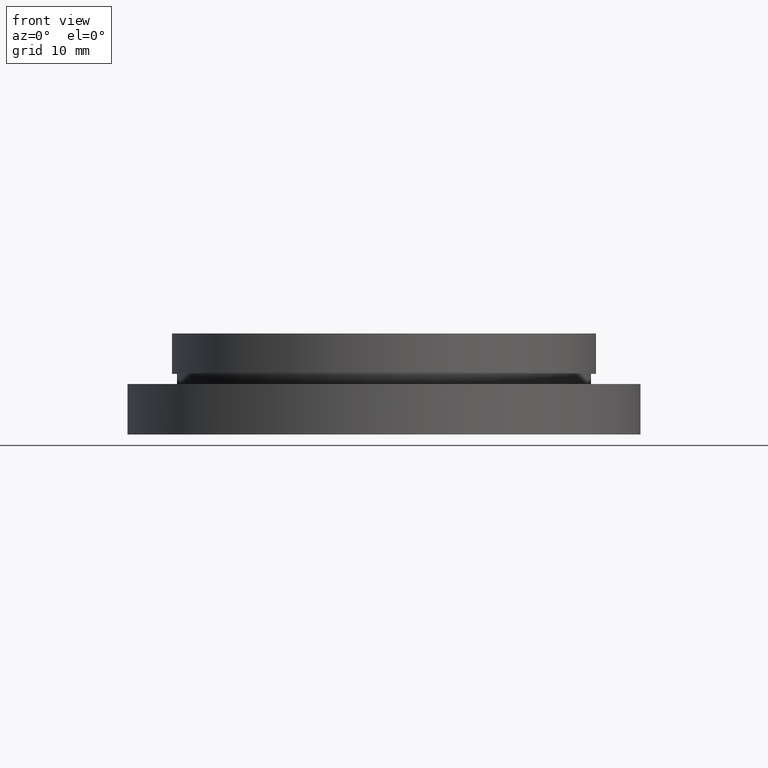
[diagram: clean part render]
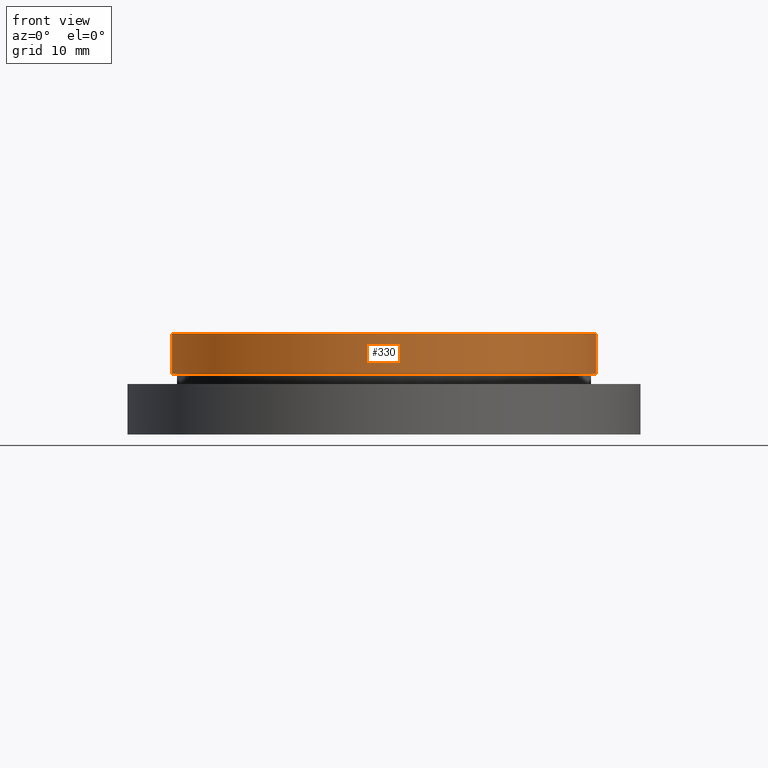
[diagram: same view with one face highlighted and labeled with its STEP entity id]
A machine part, front view. The second image highlights one B-rep face of the part: STEP entity #330.
In plain terms, the highlighted cylindrical surface (partial cylindrical patch) has radius 21 mm, axis along (-0, -0, -1).
Its self-contained STEP definition (entity closure, byte-faithful):
#10 = EDGE_CURVE ( 'NONE', #219, #157, #46, .T. ) ;
#25 = CARTESIAN_POINT ( 'NONE',  ( -21.00000000000000400, 0.0000000000000000000, -19.14057971014493000 ) ) ;
#28 = VECTOR ( 'NONE', #179, 1000.000000000000000 ) ;
#33 = CARTESIAN_POINT ( 'NONE',  ( 21.00000000000000400, 2.571758278209442100E-015, -4.000000000000000000 ) ) ;
#36 = ORIENTED_EDGE ( 'NONE', *, *, #276, .T. ) ;
#45 = DIRECTION ( 'NONE',  ( -1.000000000000000000, 0.0000000000000000000, 0.0000000000000000000 ) ) ;
#46 = CIRCLE ( 'NONE', #204, 21.00000000000000400 ) ;
#70 = CYLINDRICAL_SURFACE ( 'NONE', #365, 21.00000000000000400 ) ;
#84 = VERTEX_POINT ( 'NONE', #33 ) ;
#93 = CIRCLE ( 'NONE', #295, 21.00000000000000400 ) ;
#102 = EDGE_LOOP ( 'NONE', ( #230, #223, #36, #131 ) ) ;
#125 = VERTEX_POINT ( 'NONE', #354 ) ;
#131 = ORIENTED_EDGE ( 'NONE', *, *, #335, .F. ) ;
#140 = CARTESIAN_POINT ( 'NONE',  ( 0.0000000000000000000, 0.0000000000000000000, 0.0000000000000000000 ) ) ;
#142 = VECTOR ( 'NONE', #229, 1000.000000000000000 ) ;
#143 = DIRECTION ( 'NONE',  ( -1.000000000000000000, 0.0000000000000000000, 0.0000000000000000000 ) ) ;
#157 = VERTEX_POINT ( 'NONE', #325 ) ;
#176 = DIRECTION ( 'NONE',  ( -0.0000000000000000000, -0.0000000000000000000, -1.000000000000000000 ) ) ;
#179 = DIRECTION ( 'NONE',  ( -0.0000000000000000000, -0.0000000000000000000, -1.000000000000000000 ) ) ;
#184 = CARTESIAN_POINT ( 'NONE',  ( 0.0000000000000000000, 0.0000000000000000000, -4.000000000000000000 ) ) ;
#186 = DIRECTION ( 'NONE',  ( -1.000000000000000000, 0.0000000000000000000, 0.0000000000000000000 ) ) ;
#192 = EDGE_CURVE ( 'NONE', #219, #84, #273, .T. ) ;
#204 = AXIS2_PLACEMENT_3D ( 'NONE', #140, #176, #45 ) ;
#219 = VERTEX_POINT ( 'NONE', #426 ) ;
#223 = ORIENTED_EDGE ( 'NONE', *, *, #10, .T. ) ;
#229 = DIRECTION ( 'NONE',  ( -0.0000000000000000000, -0.0000000000000000000, -1.000000000000000000 ) ) ;
#230 = ORIENTED_EDGE ( 'NONE', *, *, #192, .F. ) ;
#273 = LINE ( 'NONE', #288, #28 ) ;
#276 = EDGE_CURVE ( 'NONE', #157, #125, #318, .T. ) ;
#288 = CARTESIAN_POINT ( 'NONE',  ( 21.00000000000000400, 2.571758278209442100E-015, -19.14057971014493000 ) ) ;
#295 = AXIS2_PLACEMENT_3D ( 'NONE', #184, #390, #143 ) ;
#318 = LINE ( 'NONE', #25, #142 ) ;
#325 = CARTESIAN_POINT ( 'NONE',  ( -21.00000000000000400, 0.0000000000000000000, 0.0000000000000000000 ) ) ;
#330 = ADVANCED_FACE ( 'NONE', ( #361 ), #70, .T. ) ;
#335 = EDGE_CURVE ( 'NONE', #84, #125, #93, .T. ) ;
#354 = CARTESIAN_POINT ( 'NONE',  ( -21.00000000000000400, 0.0000000000000000000, -4.000000000000000000 ) ) ;
#359 = DIRECTION ( 'NONE',  ( -0.0000000000000000000, -0.0000000000000000000, -1.000000000000000000 ) ) ;
#361 = FACE_OUTER_BOUND ( 'NONE', #102, .T. ) ;
#365 = AXIS2_PLACEMENT_3D ( 'NONE', #423, #359, #186 ) ;
#390 = DIRECTION ( 'NONE',  ( -0.0000000000000000000, -0.0000000000000000000, -1.000000000000000000 ) ) ;
#423 = CARTESIAN_POINT ( 'NONE',  ( 0.0000000000000000000, 0.0000000000000000000, -19.14057971014493000 ) ) ;
#426 = CARTESIAN_POINT ( 'NONE',  ( 21.00000000000000400, 2.571758278209442100E-015, 0.0000000000000000000 ) ) ;